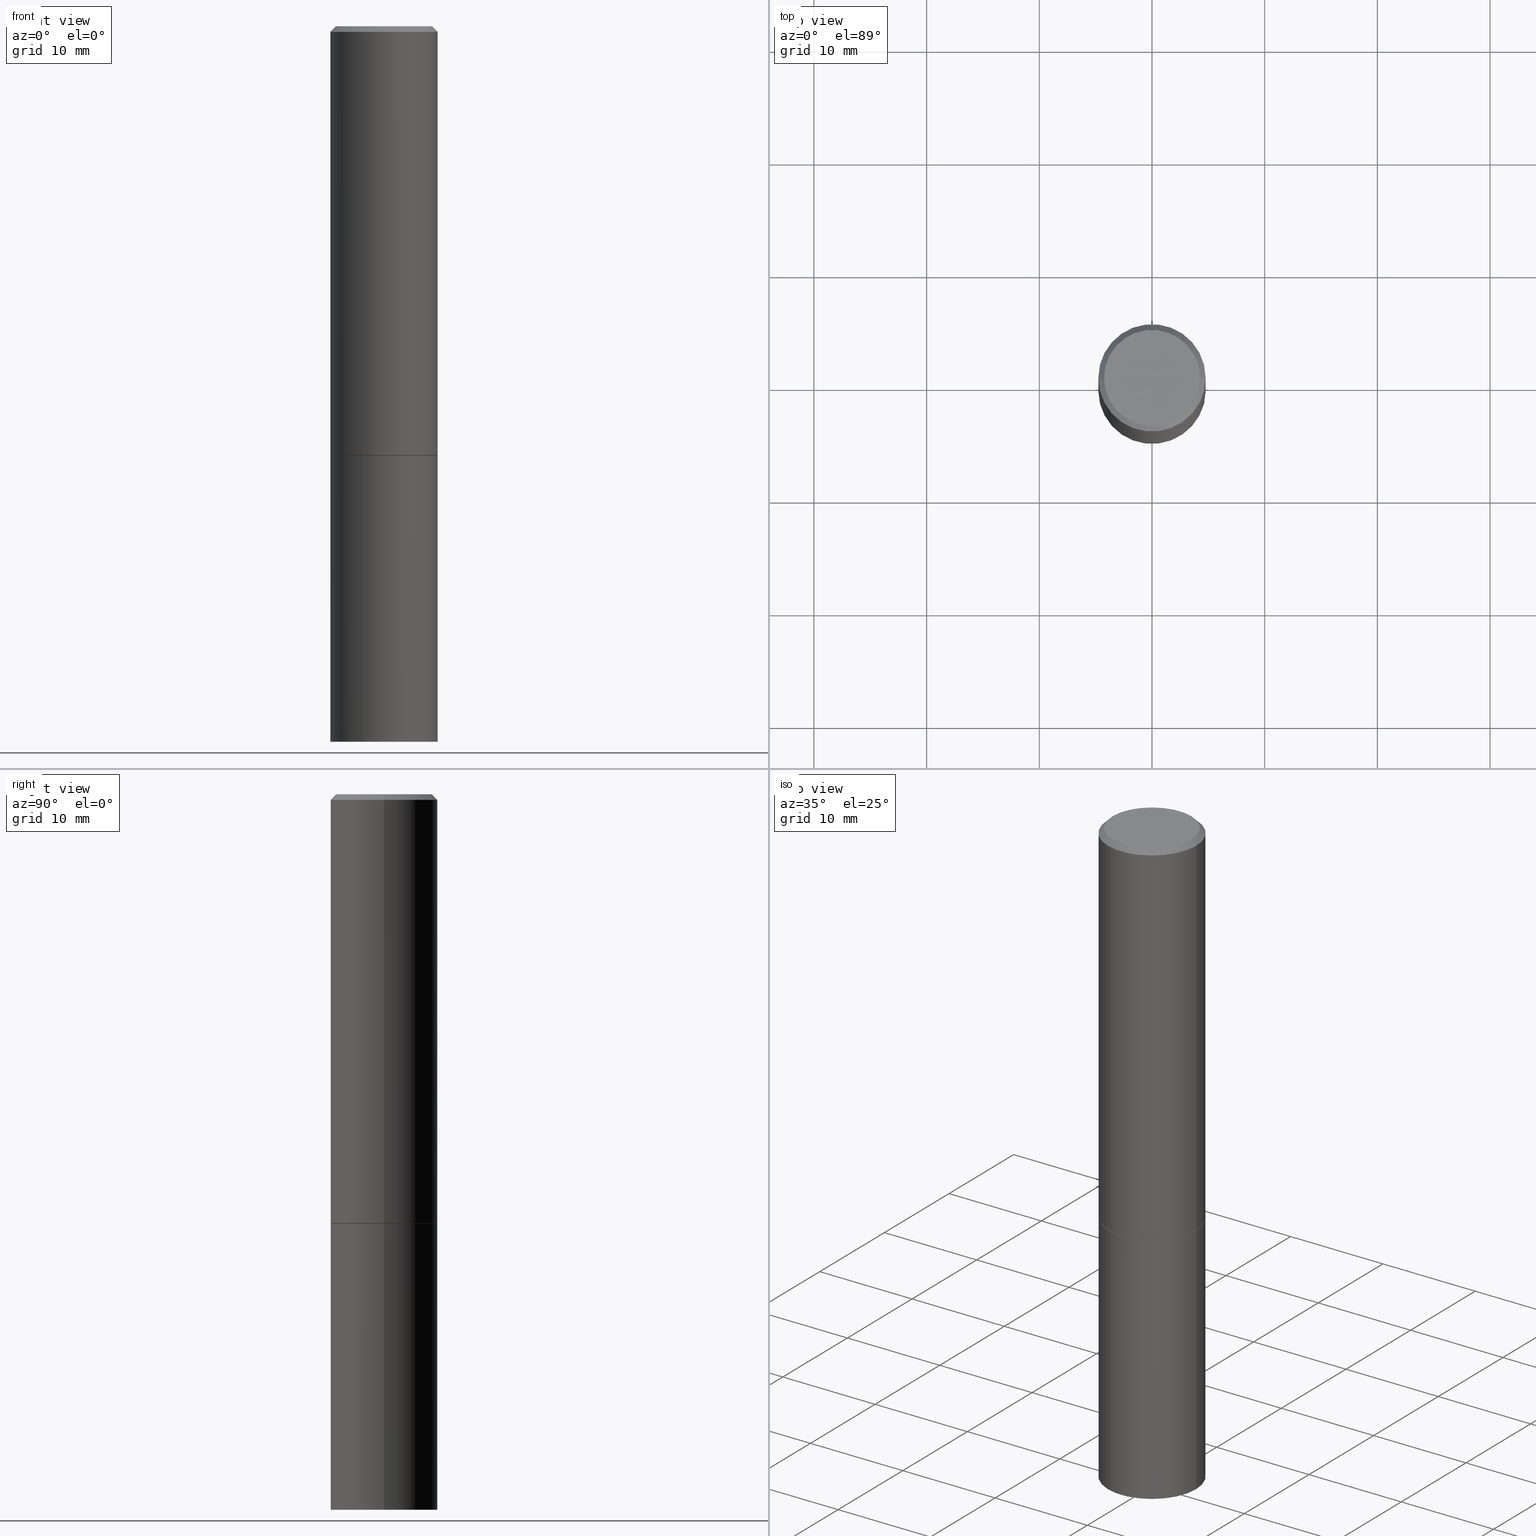
[diagram: canonical four-view strip — front | top / right | iso, engineering-drawing reading convention]
A machine part, canonical four-view strip (front | top / right | iso — engineering-drawing reading convention). The complete STEP part file that produces these views, byte-faithful:
ISO-10303-21;
HEADER;
FILE_DESCRIPTION (( 'STEP AP203' ),
    '1' );
FILE_NAME ('91288.STEP',
    '2024-03-01T05:00:29',
    ( '' ),
    ( '' ),
    'SwSTEP 2.0',
    'SolidWorks 2023',
    '' );
FILE_SCHEMA (( 'CONFIG_CONTROL_DESIGN' ));
ENDSEC;

DATA;
#1 = CARTESIAN_POINT ( 'NONE',  ( 3.668203209277706016E-29, -5.237222008264719754E-15, -1.500000000000000444 ) ) ;
#2 = ADVANCED_FACE ( 'NONE', ( #119 ), #208, .T. ) ;
#3 = EDGE_LOOP ( 'NONE', ( #309, #285, #302, #35 ) ) ;
#4 = CC_DESIGN_APPROVAL ( #91, ( #135 ) ) ;
#5 = DIRECTION ( 'NONE',  ( 1.000000000000000000, -6.982962677686269077E-15, 0.000000000000000000 ) ) ;
#6 = CARTESIAN_POINT ( 'NONE',  ( 3.665757740471519853E-29, -5.233730526925875958E-15, -1.499000000000000110 ) ) ;
#7 = APPLICATION_PROTOCOL_DEFINITION ( 'international standard', 'config_control_design', 1994, #334 ) ;
#8 = VERTEX_POINT ( 'NONE', #209 ) ;
#9 = CARTESIAN_POINT ( 'NONE',  ( 0.000000000000000000, 0.000000000000000000, 0.000000000000000000 ) ) ;
#10 = CONICAL_SURFACE ( 'NONE', #214, 0.1864999999999999714, 0.7853981633972946241 ) ;
#11 = PERSON_AND_ORGANIZATION ( #79, #43 ) ;
#12 = CARTESIAN_POINT ( 'NONE',  ( -0.1875000000000000278, -5.650695048136103317E-15, -2.500000000000000000 ) ) ;
#13 = PERSON_AND_ORGANIZATION_ROLE ( 'creator' ) ;
#14 = PLANE ( 'NONE',  #335 ) ;
#15 = EDGE_CURVE ( 'NONE', #360, #310, #61, .T. ) ;
#16 = COORDINATED_UNIVERSAL_TIME_OFFSET ( 5, 0, .BEHIND. ) ;
#17 = CARTESIAN_POINT ( 'NONE',  ( 0.000000000000000000, 0.000000000000000000, 0.000000000000000000 ) ) ;
#18 = DIRECTION ( 'NONE',  ( -2.445468806185136877E-29, 3.491481338843145188E-15, 1.000000000000000000 ) ) ;
#19 = DIRECTION ( 'NONE',  ( -2.445468806185136597E-29, 3.491481338843145583E-15, 1.000000000000000000 ) ) ;
#20 = EDGE_CURVE ( 'NONE', #8, #141, #153, .T. ) ;
#21 = DIRECTION ( 'NONE',  ( 1.000000000000000000, -6.982962677686265922E-15, 4.876176775795935793E-29 ) ) ;
#22 = DIRECTION ( 'NONE',  ( 2.445468806185136597E-29, -3.491481338843145583E-15, -1.000000000000000000 ) ) ;
#23 = CIRCLE ( 'NONE', #85, 0.1875000000000000278 ) ;
#24 = FACE_OUTER_BOUND ( 'NONE', #270, .T. ) ;
#25 = ORIENTED_EDGE ( 'NONE', *, *, #205, .T. ) ;
#26 = DIRECTION ( 'NONE',  ( -2.445468806185136597E-29, 3.491481338843145583E-15, 1.000000000000000000 ) ) ;
#27 = ORIENTED_EDGE ( 'NONE', *, *, #234, .T. ) ;
#28 = EDGE_CURVE ( 'NONE', #179, #144, #176, .T. ) ;
#29 = CARTESIAN_POINT ( 'NONE',  ( 1.309305502066211690E-15, 0.1874999999999947820, -1.500000000000000666 ) ) ;
#30 = LOCAL_TIME ( 0, 0, 29.00000000000000000, #16 ) ;
#31 = CARTESIAN_POINT ( 'NONE',  ( 0.000000000000000000, 0.000000000000000000, 0.000000000000000000 ) ) ;
#32 = ORIENTED_EDGE ( 'NONE', *, *, #28, .T. ) ;
#33 = DIRECTION ( 'NONE',  ( 1.000000000000000000, -6.982962677686265922E-15, 4.876176775795935793E-29 ) ) ;
#34 = EDGE_CURVE ( 'NONE', #147, #352, #159, .T. ) ;
#35 = ORIENTED_EDGE ( 'NONE', *, *, #172, .F. ) ;
#36 = DIRECTION ( 'NONE',  ( 1.000000000000000000, -6.982962677686266711E-15, 0.000000000000000000 ) ) ;
#37 = MANIFOLD_SOLID_BREP ( 'Body-Move/Copy2[2]', #92 ) ;
#38 = LOCAL_TIME ( 0, 0, 29.00000000000000000, #362 ) ;
#39 = AXIS2_PLACEMENT_3D ( 'NONE', #63, #124, #185 ) ;
#40 = CARTESIAN_POINT ( 'NONE',  ( -0.1874999999999998335, 1.239475875289310724E-15, -0.02000000000000004205 ) ) ;
#41 = COORDINATED_UNIVERSAL_TIME_OFFSET ( 5, 0, .BEHIND. ) ;
#42 = PRODUCT_DEFINITION ( 'UNKNOWN', '', #197, #193 ) ;
#43 = ORGANIZATION ( 'UNSPECIFIED', 'UNSPECIFIED', '' ) ;
#44 = CARTESIAN_POINT ( 'NONE',  ( 0.1864999999999999714, -6.539544547653208748E-15, -1.500000000000000444 ) ) ;
#45 = DIRECTION ( 'NONE',  ( 2.438088387897960049E-29, -3.491481338843145188E-15, -1.000000000000000000 ) ) ;
#46 = DIRECTION ( 'NONE',  ( 1.000000000000000000, -6.982962677686265922E-15, 4.876176775795935793E-29 ) ) ;
#47 = CALENDAR_DATE ( 2024, 1, 3 ) ;
#48 = CIRCLE ( 'NONE', #289, 0.1864999999999999714 ) ;
#49 = APPROVAL_PERSON_ORGANIZATION ( #296, #221, #271 ) ;
#50 = ORIENTED_EDGE ( 'NONE', *, *, #190, .T. ) ;
#51 = PLANE ( 'NONE',  #120 ) ;
#52 = CC_DESIGN_PERSON_AND_ORGANIZATION_ASSIGNMENT ( #70, #249, ( #42 ) ) ;
#53 = DIRECTION ( 'NONE',  ( 2.445468806185136597E-29, -3.491481338843145583E-15, -1.000000000000000000 ) ) ;
#54 = ORIENTED_EDGE ( 'NONE', *, *, #62, .F. ) ;
#55 = FACE_OUTER_BOUND ( 'NONE', #186, .T. ) ;
#56 = CLOSED_SHELL ( 'NONE', ( #242, #64, #175, #353 ) ) ;
#57 = APPROVAL_PERSON_ORGANIZATION ( #230, #91, #72 ) ;
#58 = ORIENTED_EDGE ( 'NONE', *, *, #15, .T. ) ;
#59 = ORIENTED_EDGE ( 'NONE', *, *, #71, .F. ) ;
#60 = ORIENTED_EDGE ( 'NONE', *, *, #106, .F. ) ;
#61 = CIRCLE ( 'NONE', #116, 0.1875000000000000278 ) ;
#62 = EDGE_CURVE ( 'NONE', #352, #147, #365, .T. ) ;
#63 = CARTESIAN_POINT ( 'NONE',  ( 3.665757740471519853E-29, -5.233730526925875958E-15, -1.499000000000000110 ) ) ;
#64 = ADVANCED_FACE ( 'NONE', ( #233 ), #243, .T. ) ;
#65 =( NAMED_UNIT ( * ) SI_UNIT ( $, .STERADIAN. ) SOLID_ANGLE_UNIT ( ) );
#66 = DIRECTION ( 'NONE',  ( 1.000000000000000000, -6.982962677686269077E-15, 0.000000000000000000 ) ) ;
#67 = COORDINATED_UNIVERSAL_TIME_OFFSET ( 5, 0, .BEHIND. ) ;
#68 = DIRECTION ( 'NONE',  ( -2.445468806185136877E-29, 3.491481338843145188E-15, 1.000000000000000000 ) ) ;
#69 = VECTOR ( 'NONE', #273, 39.37007874015748143 ) ;
#70 = PERSON_AND_ORGANIZATION ( #79, #43 ) ;
#71 = EDGE_CURVE ( 'NONE', #310, #360, #23, .T. ) ;
#72 = APPROVAL_ROLE ( '' ) ;
#73 = DIRECTION ( 'NONE',  ( 1.000000000000000000, -6.982962677686266711E-15, 0.000000000000000000 ) ) ;
#74 = CARTESIAN_POINT ( 'NONE',  ( 6.113672015462842613E-29, -8.728703347107864943E-15, -2.500000000000000000 ) ) ;
#75 = AXIS2_PLACEMENT_3D ( 'NONE', #29, #45, #299 ) ;
#76 = CARTESIAN_POINT ( 'NONE',  ( 0.000000000000000000, 0.000000000000000000, 0.000000000000000000 ) ) ;
#77 = APPROVAL_STATUS ( 'not_yet_approved' ) ;
#78 = DIRECTION ( 'NONE',  ( 1.000000000000000000, -6.982962677686266711E-15, 0.000000000000000000 ) ) ;
#79 = PERSON ( 'UNSPECIFIED', 'UNSPECIFIED', 'UNSPECIFIED', ('UNSPECIFIED'), ('UNSPECIFIED'), ('UNSPECIFIED') ) ;
#80 = CC_DESIGN_PERSON_AND_ORGANIZATION_ASSIGNMENT ( #354, #103, ( #197 ) ) ;
#81 = CIRCLE ( 'NONE', #290, 0.1875000000000000278 ) ;
#82 = DIRECTION ( 'NONE',  ( 1.000000000000000000, -6.982962677686266711E-15, 0.000000000000000000 ) ) ;
#83 = EDGE_LOOP ( 'NONE', ( #263, #156 ) ) ;
#84 = ORIENTED_EDGE ( 'NONE', *, *, #298, .F. ) ;
#85 = AXIS2_PLACEMENT_3D ( 'NONE', #188, #218, #73 ) ;
#86 = LOCAL_TIME ( 0, 0, 29.00000000000000000, #157 ) ;
#87 = ORIENTED_EDGE ( 'NONE', *, *, #255, .F. ) ;
#88 = EDGE_LOOP ( 'NONE', ( #339, #314 ) ) ;
#89 = CARTESIAN_POINT ( 'NONE',  ( 3.668203209277706016E-29, -5.237222008264719754E-15, -1.500000000000000444 ) ) ;
#90 = CARTESIAN_POINT ( 'NONE',  ( -0.1874999999999998335, 1.239475875289310724E-15, -0.02000000000000004205 ) ) ;
#91 = APPROVAL ( #77, 'UNSPECIFIED' ) ;
#92 = CLOSED_SHELL ( 'NONE', ( #2, #313, #349, #181, #182, #338, #304, #145 ) ) ;
#93 = CIRCLE ( 'NONE', #160, 0.1674999999999998435 ) ;
#94 = CARTESIAN_POINT ( 'NONE',  ( 1.309305502066236145E-15, 0.1874999999999912847, -2.500000000000000444 ) ) ;
#95 = APPROVAL_DATE_TIME ( #248, #342 ) ;
#96 = LINE ( 'NONE', #291, #134 ) ;
#97 =( LENGTH_UNIT ( ) NAMED_UNIT ( * ) SI_UNIT ( $, .METRE. ) );
#98 = EDGE_CURVE ( 'NONE', #311, #317, #96, .T. ) ;
#99 = CALENDAR_DATE ( 2024, 1, 3 ) ;
#100 = CARTESIAN_POINT ( 'NONE',  ( -0.1875000000000000278, 1.332267629550188046E-15, -9.223003294227947991E-30 ) ) ;
#101 = AXIS2_PLACEMENT_3D ( 'NONE', #363, #19, #46 ) ;
#102 = DIMENSIONAL_EXPONENTS ( 1.000000000000000000, 0.000000000000000000, 0.000000000000000000, 0.000000000000000000, 0.000000000000000000, 0.000000000000000000, 0.000000000000000000 ) ;
#103 = PERSON_AND_ORGANIZATION_ROLE ( 'design_supplier' ) ;
#104 = CARTESIAN_POINT ( 'NONE',  ( 0.1864999999999999714, -6.539544547653208748E-15, -1.500000000000000444 ) ) ;
#105 = CARTESIAN_POINT ( 'NONE',  ( 0.000000000000000000, 0.000000000000000000, 0.000000000000000000 ) ) ;
#106 = EDGE_CURVE ( 'NONE', #311, #8, #191, .T. ) ;
#107 = ORIENTED_EDGE ( 'NONE', *, *, #154, .F. ) ;
#108 = VECTOR ( 'NONE', #118, 39.37007874015748143 ) ;
#109 = DATE_AND_TIME ( #297, #38 ) ;
#110 = VERTEX_POINT ( 'NONE', #12 ) ;
#111 = CARTESIAN_POINT ( 'NONE',  ( 6.113672015462842613E-29, -8.728703347107864943E-15, -2.500000000000000000 ) ) ;
#112 = FACE_OUTER_BOUND ( 'NONE', #366, .T. ) ;
#113 = APPROVAL_DATE_TIME ( #252, #91 ) ;
#114 = LINE ( 'NONE', #44, #142 ) ;
#115 = EDGE_CURVE ( 'NONE', #110, #310, #320, .T. ) ;
#116 = AXIS2_PLACEMENT_3D ( 'NONE', #288, #261, #36 ) ;
#117 = CONICAL_SURFACE ( 'NONE', #272, 0.1874999999999998335, 0.7853981633974471688 ) ;
#118 = DIRECTION ( 'NONE',  ( -0.7071067811865466846, 2.468850131082247989E-15, -0.7071067811865483499 ) ) ;
#119 = FACE_OUTER_BOUND ( 'NONE', #137, .T. ) ;
#120 = AXIS2_PLACEMENT_3D ( 'NONE', #166, #277, #21 ) ;
#121 = ORIENTED_EDGE ( 'NONE', *, *, #328, .F. ) ;
#122 = EDGE_LOOP ( 'NONE', ( #87, #244 ) ) ;
#123 = PERSON_AND_ORGANIZATION_ROLE ( 'design_owner' ) ;
#124 = DIRECTION ( 'NONE',  ( -2.445468806185136597E-29, 3.491481338843145583E-15, 1.000000000000000000 ) ) ;
#125 = MECHANICAL_CONTEXT ( 'NONE', #334, 'mechanical' ) ;
#126 = LINE ( 'NONE', #275, #129 ) ;
#127 = CALENDAR_DATE ( 2024, 1, 3 ) ;
#128 = APPROVAL_STATUS ( 'not_yet_approved' ) ;
#129 = VECTOR ( 'NONE', #18, 39.37007874015748143 ) ;
#130 = DIRECTION ( 'NONE',  ( -1.000000000000000000, 6.982962677686265922E-15, -4.876176775795935793E-29 ) ) ;
#131 = CIRCLE ( 'NONE', #260, 0.1875000000000000278 ) ;
#132 = DIRECTION ( 'NONE',  ( -0.7071067811864388819, 7.493145998869961307E-15, 0.7071067811866561525 ) ) ;
#133 = CARTESIAN_POINT ( 'NONE',  ( 4.890937612370283668E-31, -6.982962677686305168E-17, -0.02000000000000004205 ) ) ;
#134 = VECTOR ( 'NONE', #269, 39.37007874015748143 ) ;
#135 = SECURITY_CLASSIFICATION ( '', '', #222 ) ;
#136 = EDGE_CURVE ( 'NONE', #352, #141, #217, .T. ) ;
#137 = EDGE_LOOP ( 'NONE', ( #158, #262, #183, #238 ) ) ;
#138 = EDGE_LOOP ( 'NONE', ( #178, #84, #347, #25 ) ) ;
#139 = ADVANCED_BREP_SHAPE_REPRESENTATION ( '91288', ( #149, #37, #151 ), #170 ) ;
#140 = DIRECTION ( 'NONE',  ( -2.445468806185136597E-29, 3.491481338843145583E-15, 1.000000000000000000 ) ) ;
#141 = VERTEX_POINT ( 'NONE', #40 ) ;
#142 = VECTOR ( 'NONE', #329, 39.37007874015748143 ) ;
#143 = AXIS2_PLACEMENT_3D ( 'NONE', #17, #168, #226 ) ;
#144 = VERTEX_POINT ( 'NONE', #104 ) ;
#145 = ADVANCED_FACE ( 'NONE', ( #251 ), #14, .F. ) ;
#146 = EDGE_LOOP ( 'NONE', ( #258, #27, #286, #59 ) ) ;
#147 = VERTEX_POINT ( 'NONE', #295 ) ;
#148 = ORIENTED_EDGE ( 'NONE', *, *, #62, .T. ) ;
#149 = MANIFOLD_SOLID_BREP ( 'Body-Move/Copy2[1]', #56 ) ;
#150 = CIRCLE ( 'NONE', #196, 0.1874999999999998335 ) ;
#151 = AXIS2_PLACEMENT_3D ( 'NONE', #9, #187, #350 ) ;
#152 = CC_DESIGN_PERSON_AND_ORGANIZATION_ASSIGNMENT ( #162, #13, ( #197 ) ) ;
#153 = LINE ( 'NONE', #90, #108 ) ;
#154 = EDGE_CURVE ( 'NONE', #341, #360, #126, .T. ) ;
#155 = CALENDAR_DATE ( 2024, 1, 3 ) ;
#156 = ORIENTED_EDGE ( 'NONE', *, *, #106, .T. ) ;
#157 = COORDINATED_UNIVERSAL_TIME_OFFSET ( 5, 0, .BEHIND. ) ;
#158 = ORIENTED_EDGE ( 'NONE', *, *, #167, .T. ) ;
#159 = CIRCLE ( 'NONE', #359, 0.1875000000000000278 ) ;
#160 = AXIS2_PLACEMENT_3D ( 'NONE', #76, #198, #300 ) ;
#161 = LENGTH_MEASURE_WITH_UNIT ( LENGTH_MEASURE( 0.02539999999999999897 ), #97 );
#162 = PERSON_AND_ORGANIZATION ( #79, #43 ) ;
#163 = DIRECTION ( 'NONE',  ( 2.438088387897960049E-29, -3.491481338843145188E-15, -1.000000000000000000 ) ) ;
#164 = CC_DESIGN_DATE_AND_TIME_ASSIGNMENT ( #109, #225, ( #135 ) ) ;
#165 = PERSON_AND_ORGANIZATION ( #79, #43 ) ;
#166 = CARTESIAN_POINT ( 'NONE',  ( 3.668203209277706016E-29, -5.237222008264719754E-15, -1.500000000000000444 ) ) ;
#167 = EDGE_CURVE ( 'NONE', #144, #179, #48, .T. ) ;
#168 = DIRECTION ( 'NONE',  ( -2.445468806185136597E-29, 3.491481338843145583E-15, 1.000000000000000000 ) ) ;
#169 = ORIENTED_EDGE ( 'NONE', *, *, #205, .F. ) ;
#170 =( GEOMETRIC_REPRESENTATION_CONTEXT ( 3 ) GLOBAL_UNCERTAINTY_ASSIGNED_CONTEXT ( ( #344 ) ) GLOBAL_UNIT_ASSIGNED_CONTEXT ( ( #319, #213, #65 ) ) REPRESENTATION_CONTEXT ( 'NONE', 'WORKASPACE' ) );
#171 = CARTESIAN_POINT ( 'NONE',  ( 0.1674999999999998435, -1.252653207992877302E-15, 8.469775550109232378E-30 ) ) ;
#172 = EDGE_CURVE ( 'NONE', #147, #317, #189, .T. ) ;
#173 = CARTESIAN_POINT ( 'NONE',  ( 3.668203209277706016E-29, -5.237222008264719754E-15, -1.500000000000000444 ) ) ;
#174 = DIRECTION ( 'NONE',  ( -2.445468806185136597E-29, 3.491481338843145583E-15, 1.000000000000000000 ) ) ;
#175 = ADVANCED_FACE ( 'NONE', ( #301 ), #336, .F. ) ;
#176 = CIRCLE ( 'NONE', #232, 0.1864999999999999714 ) ;
#177 = EDGE_LOOP ( 'NONE', ( #337, #315, #206, #107 ) ) ;
#178 = ORIENTED_EDGE ( 'NONE', *, *, #98, .F. ) ;
#179 = VERTEX_POINT ( 'NONE', #278 ) ;
#180 = CYLINDRICAL_SURFACE ( 'NONE', #326, 0.1875000000000000278 ) ;
#181 = ADVANCED_FACE ( 'NONE', ( #227 ), #274, .T. ) ;
#182 = ADVANCED_FACE ( 'NONE', ( #112 ), #200, .T. ) ;
#183 = ORIENTED_EDGE ( 'NONE', *, *, #34, .F. ) ;
#184 = LOCAL_TIME ( 0, 0, 29.00000000000000000, #67 ) ;
#185 = DIRECTION ( 'NONE',  ( 1.000000000000000000, -6.982962677686266711E-15, 0.000000000000000000 ) ) ;
#186 = EDGE_LOOP ( 'NONE', ( #60, #343, #284, #265 ) ) ;
#187 = DIRECTION ( 'NONE',  ( 0.000000000000000000, 0.000000000000000000, 1.000000000000000000 ) ) ;
#188 = CARTESIAN_POINT ( 'NONE',  ( 3.668203209277704895E-29, -5.237222008264718177E-15, -1.500000000000000222 ) ) ;
#189 = LINE ( 'NONE', #293, #245 ) ;
#190 = EDGE_CURVE ( 'NONE', #144, #147, #114, .T. ) ;
#191 = CIRCLE ( 'NONE', #236, 0.1674999999999998435 ) ;
#192 = CARTESIAN_POINT ( 'NONE',  ( 1.169646248512448609E-15, 0.1674999999999998435, -5.848231242562263753E-16 ) ) ;
#193 = DESIGN_CONTEXT ( 'detailed design', #322, 'design' ) ;
#194 = DIRECTION ( 'NONE',  ( 1.000000000000000000, -6.982962677686266711E-15, 4.876176775795936914E-29 ) ) ;
#195 = DIRECTION ( 'NONE',  ( -2.445468806185136597E-29, 3.491481338843145583E-15, 1.000000000000000000 ) ) ;
#196 = AXIS2_PLACEMENT_3D ( 'NONE', #303, #26, #308 ) ;
#197 = PRODUCT_DEFINITION_FORMATION_WITH_SPECIFIED_SOURCE ( 'ANY', '', #247, .NOT_KNOWN. ) ;
#198 = DIRECTION ( 'NONE',  ( -2.445468806185136597E-29, 3.491481338843145583E-15, 1.000000000000000000 ) ) ;
#199 = CYLINDRICAL_SURFACE ( 'NONE', #143, 0.1874999999999999167 ) ;
#200 = CYLINDRICAL_SURFACE ( 'NONE', #101, 0.1874999999999999167 ) ;
#201 = DIRECTION ( 'NONE',  ( 1.000000000000000000, -6.982962677686265922E-15, 4.876176775795935793E-29 ) ) ;
#202 = CIRCLE ( 'NONE', #250, 0.1874999999999998335 ) ;
#203 = LOCAL_TIME ( 0, 0, 29.00000000000000000, #41 ) ;
#204 = FACE_OUTER_BOUND ( 'NONE', #88, .T. ) ;
#205 = EDGE_CURVE ( 'NONE', #141, #317, #150, .T. ) ;
#206 = ORIENTED_EDGE ( 'NONE', *, *, #15, .F. ) ;
#207 = CARTESIAN_POINT ( 'NONE',  ( 4.890937612370283668E-31, -6.982962677686305168E-17, -0.02000000000000004205 ) ) ;
#208 = CONICAL_SURFACE ( 'NONE', #294, 0.1864999999999999714, 0.7853981633972946241 ) ;
#209 = CARTESIAN_POINT ( 'NONE',  ( -0.1674999999999998435, 1.204561061900879864E-15, -8.301862719484106184E-30 ) ) ;
#210 = FACE_OUTER_BOUND ( 'NONE', #146, .T. ) ;
#211 = DIRECTION ( 'NONE',  ( 1.000000000000000000, -6.982962677686266711E-15, 0.000000000000000000 ) ) ;
#212 = AXIS2_PLACEMENT_3D ( 'NONE', #94, #215, #318 ) ;
#213 =( NAMED_UNIT ( * ) PLANE_ANGLE_UNIT ( ) SI_UNIT ( $, .RADIAN. ) );
#214 = AXIS2_PLACEMENT_3D ( 'NONE', #173, #140, #5 ) ;
#215 = DIRECTION ( 'NONE',  ( 2.438088387897960049E-29, -3.491481338843145188E-15, -1.000000000000000000 ) ) ;
#216 = DATE_AND_TIME ( #155, #184 ) ;
#217 = LINE ( 'NONE', #327, #69 ) ;
#218 = DIRECTION ( 'NONE',  ( -2.445468806185136597E-29, 3.491481338843145583E-15, 1.000000000000000000 ) ) ;
#219 = APPROVAL_STATUS ( 'not_yet_approved' ) ;
#220 = CC_DESIGN_SECURITY_CLASSIFICATION ( #135, ( #197 ) ) ;
#221 = APPROVAL ( #219, 'UNSPECIFIED' ) ;
#222 = SECURITY_CLASSIFICATION_LEVEL ( 'unclassified' ) ;
#223 = EDGE_CURVE ( 'NONE', #317, #141, #202, .T. ) ;
#224 = CC_DESIGN_APPROVAL ( #221, ( #197 ) ) ;
#225 = DATE_TIME_ROLE ( 'classification_date' ) ;
#226 = DIRECTION ( 'NONE',  ( 1.000000000000000000, -6.982962677686265922E-15, 4.876176775795935793E-29 ) ) ;
#227 = FACE_OUTER_BOUND ( 'NONE', #138, .T. ) ;
#228 = CARTESIAN_POINT ( 'NONE',  ( -0.1864999999999999714, -3.912059806072132914E-15, -1.500000000000000444 ) ) ;
#229 = CARTESIAN_POINT ( 'NONE',  ( 4.890937612370283668E-31, -6.982962677686305168E-17, -0.02000000000000004205 ) ) ;
#230 = PERSON_AND_ORGANIZATION ( #79, #43 ) ;
#231 = CARTESIAN_POINT ( 'NONE',  ( -0.1875000000000000278, -5.650695048136103317E-15, -1.500000000000000222 ) ) ;
#232 = AXIS2_PLACEMENT_3D ( 'NONE', #1, #282, #266 ) ;
#233 = FACE_OUTER_BOUND ( 'NONE', #122, .T. ) ;
#234 = EDGE_CURVE ( 'NONE', #110, #341, #81, .T. ) ;
#235 = DIRECTION ( 'NONE',  ( -2.445468806185136597E-29, 3.491481338843145583E-15, 1.000000000000000000 ) ) ;
#236 = AXIS2_PLACEMENT_3D ( 'NONE', #323, #351, #194 ) ;
#237 = ORIENTED_EDGE ( 'NONE', *, *, #172, .T. ) ;
#238 = ORIENTED_EDGE ( 'NONE', *, *, #190, .F. ) ;
#239 = ORIENTED_EDGE ( 'NONE', *, *, #71, .T. ) ;
#240 = PRODUCT_DEFINITION_SHAPE ( 'NONE', 'NONE',  #42 ) ;
#241 = DATE_AND_TIME ( #127, #203 ) ;
#242 = ADVANCED_FACE ( 'NONE', ( #358 ), #257, .T. ) ;
#243 = PLANE ( 'NONE',  #212 ) ;
#244 = ORIENTED_EDGE ( 'NONE', *, *, #234, .F. ) ;
#245 = VECTOR ( 'NONE', #331, 39.37007874015748143 ) ;
#246 = DIRECTION ( 'NONE',  ( -2.445468806185136597E-29, 3.491481338843145583E-15, 1.000000000000000000 ) ) ;
#247 = PRODUCT ( '91288', '91288', '', ( #125 ) ) ;
#248 = DATE_AND_TIME ( #99, #86 ) ;
#249 = PERSON_AND_ORGANIZATION_ROLE ( 'creator' ) ;
#250 = AXIS2_PLACEMENT_3D ( 'NONE', #133, #254, #356 ) ;
#251 = FACE_OUTER_BOUND ( 'NONE', #83, .T. ) ;
#252 = DATE_AND_TIME ( #47, #30 ) ;
#253 = CARTESIAN_POINT ( 'NONE',  ( 3.668203209277706016E-29, -5.237222008264719754E-15, -1.500000000000000444 ) ) ;
#254 = DIRECTION ( 'NONE',  ( -2.445468806185136597E-29, 3.491481338843145583E-15, 1.000000000000000000 ) ) ;
#255 = EDGE_CURVE ( 'NONE', #341, #110, #131, .T. ) ;
#256 = DIRECTION ( 'NONE',  ( -1.000000000000000000, 6.982962677686266711E-15, 0.000000000000000000 ) ) ;
#257 = CYLINDRICAL_SURFACE ( 'NONE', #307, 0.1875000000000000278 ) ;
#258 = ORIENTED_EDGE ( 'NONE', *, *, #115, .F. ) ;
#259 = CARTESIAN_POINT ( 'NONE',  ( 0.1875000000000000278, -1.003800884917403995E-14, -2.500000000000000000 ) ) ;
#260 = AXIS2_PLACEMENT_3D ( 'NONE', #111, #305, #78 ) ;
#261 = DIRECTION ( 'NONE',  ( -2.445468806185136597E-29, 3.491481338843145583E-15, 1.000000000000000000 ) ) ;
#262 = ORIENTED_EDGE ( 'NONE', *, *, #328, .T. ) ;
#263 = ORIENTED_EDGE ( 'NONE', *, *, #298, .T. ) ;
#264 = CARTESIAN_POINT ( 'NONE',  ( -0.1874999999999999722, -1.319512447301180399E-15, -1.499000000000000110 ) ) ;
#265 = ORIENTED_EDGE ( 'NONE', *, *, #20, .F. ) ;
#266 = DIRECTION ( 'NONE',  ( 1.000000000000000000, -6.982962677686269077E-15, 0.000000000000000000 ) ) ;
#267 = ORIENTED_EDGE ( 'NONE', *, *, #136, .F. ) ;
#268 = PRODUCT_RELATED_PRODUCT_CATEGORY ( 'detail', '', ( #247 ) ) ;
#269 = DIRECTION ( 'NONE',  ( 0.7071067811865466846, -7.319954787623252890E-15, -0.7071067811865483499 ) ) ;
#270 = EDGE_LOOP ( 'NONE', ( #121, #32, #50, #54 ) ) ;
#271 = APPROVAL_ROLE ( '' ) ;
#272 = AXIS2_PLACEMENT_3D ( 'NONE', #207, #53, #340 ) ;
#273 = DIRECTION ( 'NONE',  ( -2.445468806185136877E-29, 3.491481338843145188E-15, 1.000000000000000000 ) ) ;
#274 = CONICAL_SURFACE ( 'NONE', #306, 0.1874999999999998335, 0.7853981633974471688 ) ;
#275 = CARTESIAN_POINT ( 'NONE',  ( 0.1875000000000000278, -1.309305502066175008E-15, 9.142831454617381013E-30 ) ) ;
#276 = PERSON_AND_ORGANIZATION_ROLE ( 'classification_officer' ) ;
#277 = DIRECTION ( 'NONE',  ( -2.438088387897960049E-29, 3.491481338843145188E-15, 1.000000000000000000 ) ) ;
#278 = CARTESIAN_POINT ( 'NONE',  ( -0.1864999999999999714, -3.906761351723910512E-15, -1.500000000000000444 ) ) ;
#279 = LINE ( 'NONE', #228, #312 ) ;
#280 = CC_DESIGN_APPROVAL ( #342, ( #42 ) ) ;
#281 = CC_DESIGN_DATE_AND_TIME_ASSIGNMENT ( #216, #292, ( #42 ) ) ;
#282 = DIRECTION ( 'NONE',  ( -2.445468806185136597E-29, 3.491481338843145583E-15, 1.000000000000000000 ) ) ;
#283 = EDGE_LOOP ( 'NONE', ( #58, #239 ) ) ;
#284 = ORIENTED_EDGE ( 'NONE', *, *, #223, .T. ) ;
#285 = ORIENTED_EDGE ( 'NONE', *, *, #136, .T. ) ;
#286 = ORIENTED_EDGE ( 'NONE', *, *, #154, .T. ) ;
#287 = DIRECTION ( 'NONE',  ( -2.445468806185136597E-29, 3.491481338843145583E-15, 1.000000000000000000 ) ) ;
#288 = CARTESIAN_POINT ( 'NONE',  ( 3.668203209277704895E-29, -5.237222008264718177E-15, -1.500000000000000222 ) ) ;
#289 = AXIS2_PLACEMENT_3D ( 'NONE', #253, #246, #66 ) ;
#290 = AXIS2_PLACEMENT_3D ( 'NONE', #74, #195, #82 ) ;
#291 = CARTESIAN_POINT ( 'NONE',  ( 0.1874999999999998335, -1.356173001359024283E-15, -0.02000000000000004205 ) ) ;
#292 = DATE_TIME_ROLE ( 'creation_date' ) ;
#293 = CARTESIAN_POINT ( 'NONE',  ( 0.1874999999999999167, -1.309305502066174219E-15, 9.142831454617375408E-30 ) ) ;
#294 = AXIS2_PLACEMENT_3D ( 'NONE', #89, #235, #316 ) ;
#295 = CARTESIAN_POINT ( 'NONE',  ( 0.1875000000000000278, -6.543036028992050967E-15, -1.499000000000000110 ) ) ;
#296 = PERSON_AND_ORGANIZATION ( #79, #43 ) ;
#297 = CALENDAR_DATE ( 2024, 1, 3 ) ;
#298 = EDGE_CURVE ( 'NONE', #8, #311, #93, .T. ) ;
#299 = DIRECTION ( 'NONE',  ( -1.000000000000000000, 6.982962677686265922E-15, -4.876176775795935793E-29 ) ) ;
#300 = DIRECTION ( 'NONE',  ( 1.000000000000000000, -6.982962677686266711E-15, 4.876176775795936914E-29 ) ) ;
#301 = FACE_OUTER_BOUND ( 'NONE', #283, .T. ) ;
#302 = ORIENTED_EDGE ( 'NONE', *, *, #223, .F. ) ;
#303 = CARTESIAN_POINT ( 'NONE',  ( 4.890937612370283668E-31, -6.982962677686305168E-17, -0.02000000000000004205 ) ) ;
#304 = ADVANCED_FACE ( 'NONE', ( #204 ), #51, .F. ) ;
#305 = DIRECTION ( 'NONE',  ( -2.445468806185136597E-29, 3.491481338843145583E-15, 1.000000000000000000 ) ) ;
#306 = AXIS2_PLACEMENT_3D ( 'NONE', #229, #22, #256 ) ;
#307 = AXIS2_PLACEMENT_3D ( 'NONE', #105, #330, #201 ) ;
#308 = DIRECTION ( 'NONE',  ( 1.000000000000000000, -6.982962677686266711E-15, 0.000000000000000000 ) ) ;
#309 = ORIENTED_EDGE ( 'NONE', *, *, #34, .T. ) ;
#310 = VERTEX_POINT ( 'NONE', #231 ) ;
#311 = VERTEX_POINT ( 'NONE', #171 ) ;
#312 = VECTOR ( 'NONE', #132, 39.37007874015748143 ) ;
#313 = ADVANCED_FACE ( 'NONE', ( #361 ), #199, .T. ) ;
#314 = ORIENTED_EDGE ( 'NONE', *, *, #28, .F. ) ;
#315 = ORIENTED_EDGE ( 'NONE', *, *, #115, .T. ) ;
#316 = DIRECTION ( 'NONE',  ( 1.000000000000000000, -6.982962677686269077E-15, 0.000000000000000000 ) ) ;
#317 = VERTEX_POINT ( 'NONE', #332 ) ;
#318 = DIRECTION ( 'NONE',  ( -1.000000000000000000, 6.982962677686265922E-15, -4.876176775795935793E-29 ) ) ;
#319 =( CONVERSION_BASED_UNIT ( 'INCH', #161 ) LENGTH_UNIT ( ) NAMED_UNIT ( #102 ) );
#320 = LINE ( 'NONE', #100, #324 ) ;
#321 = APPLICATION_PROTOCOL_DEFINITION ( 'international standard', 'config_control_design', 1994, #322 ) ;
#322 = APPLICATION_CONTEXT ( 'configuration controlled 3d designs of mechanical parts and assemblies' ) ;
#323 = CARTESIAN_POINT ( 'NONE',  ( 0.000000000000000000, 0.000000000000000000, 0.000000000000000000 ) ) ;
#324 = VECTOR ( 'NONE', #68, 39.37007874015748143 ) ;
#325 = PERSON_AND_ORGANIZATION ( #79, #43 ) ;
#326 = AXIS2_PLACEMENT_3D ( 'NONE', #31, #287, #33 ) ;
#327 = CARTESIAN_POINT ( 'NONE',  ( -0.1874999999999999167, 1.332267629550187257E-15, -9.223003294227943787E-30 ) ) ;
#328 = EDGE_CURVE ( 'NONE', #179, #352, #279, .T. ) ;
#329 = DIRECTION ( 'NONE',  ( 0.7071067811864388819, -2.468850131081119129E-15, 0.7071067811866561525 ) ) ;
#330 = DIRECTION ( 'NONE',  ( -2.445468806185136597E-29, 3.491481338843145583E-15, 1.000000000000000000 ) ) ;
#331 = DIRECTION ( 'NONE',  ( -2.445468806185136877E-29, 3.491481338843145188E-15, 1.000000000000000000 ) ) ;
#332 = CARTESIAN_POINT ( 'NONE',  ( 0.1874999999999998335, -1.356173001359024283E-15, -0.02000000000000004205 ) ) ;
#333 = CC_DESIGN_PERSON_AND_ORGANIZATION_ASSIGNMENT ( #11, #123, ( #247 ) ) ;
#334 = APPLICATION_CONTEXT ( 'configuration controlled 3d designs of mechanical parts and assemblies' ) ;
#335 = AXIS2_PLACEMENT_3D ( 'NONE', #192, #163, #130 ) ;
#336 = PLANE ( 'NONE',  #75 ) ;
#337 = ORIENTED_EDGE ( 'NONE', *, *, #255, .T. ) ;
#338 = ADVANCED_FACE ( 'NONE', ( #24 ), #10, .T. ) ;
#339 = ORIENTED_EDGE ( 'NONE', *, *, #167, .F. ) ;
#340 = DIRECTION ( 'NONE',  ( -1.000000000000000000, 6.982962677686266711E-15, 0.000000000000000000 ) ) ;
#341 = VERTEX_POINT ( 'NONE', #259 ) ;
#342 = APPROVAL ( #128, 'UNSPECIFIED' ) ;
#343 = ORIENTED_EDGE ( 'NONE', *, *, #98, .T. ) ;
#344 = UNCERTAINTY_MEASURE_WITH_UNIT (LENGTH_MEASURE( 1.000000000000000082E-05 ), #319, 'distance_accuracy_value', 'NONE');
#345 = APPROVAL_PERSON_ORGANIZATION ( #325, #342, #346 ) ;
#346 = APPROVAL_ROLE ( '' ) ;
#347 = ORIENTED_EDGE ( 'NONE', *, *, #20, .T. ) ;
#348 = APPROVAL_DATE_TIME ( #241, #221 ) ;
#349 = ADVANCED_FACE ( 'NONE', ( #55 ), #117, .T. ) ;
#350 = DIRECTION ( 'NONE',  ( 1.000000000000000000, 0.000000000000000000, 0.000000000000000000 ) ) ;
#351 = DIRECTION ( 'NONE',  ( -2.445468806185136597E-29, 3.491481338843145583E-15, 1.000000000000000000 ) ) ;
#352 = VERTEX_POINT ( 'NONE', #264 ) ;
#353 = ADVANCED_FACE ( 'NONE', ( #210 ), #180, .T. ) ;
#354 = PERSON_AND_ORGANIZATION ( #79, #43 ) ;
#355 = CC_DESIGN_PERSON_AND_ORGANIZATION_ASSIGNMENT ( #165, #276, ( #135 ) ) ;
#356 = DIRECTION ( 'NONE',  ( 1.000000000000000000, -6.982962677686266711E-15, 0.000000000000000000 ) ) ;
#357 = SHAPE_DEFINITION_REPRESENTATION ( #240, #139 ) ;
#358 = FACE_OUTER_BOUND ( 'NONE', #177, .T. ) ;
#359 = AXIS2_PLACEMENT_3D ( 'NONE', #6, #174, #211 ) ;
#360 = VERTEX_POINT ( 'NONE', #364 ) ;
#361 = FACE_OUTER_BOUND ( 'NONE', #3, .T. ) ;
#362 = COORDINATED_UNIVERSAL_TIME_OFFSET ( 5, 0, .BEHIND. ) ;
#363 = CARTESIAN_POINT ( 'NONE',  ( 0.000000000000000000, 0.000000000000000000, 0.000000000000000000 ) ) ;
#364 = CARTESIAN_POINT ( 'NONE',  ( 0.1875000000000000278, -6.546527510330893974E-15, -1.500000000000000222 ) ) ;
#365 = CIRCLE ( 'NONE', #39, 0.1875000000000000278 ) ;
#366 = EDGE_LOOP ( 'NONE', ( #267, #148, #237, #169 ) ) ;
ENDSEC;
END-ISO-10303-21;
